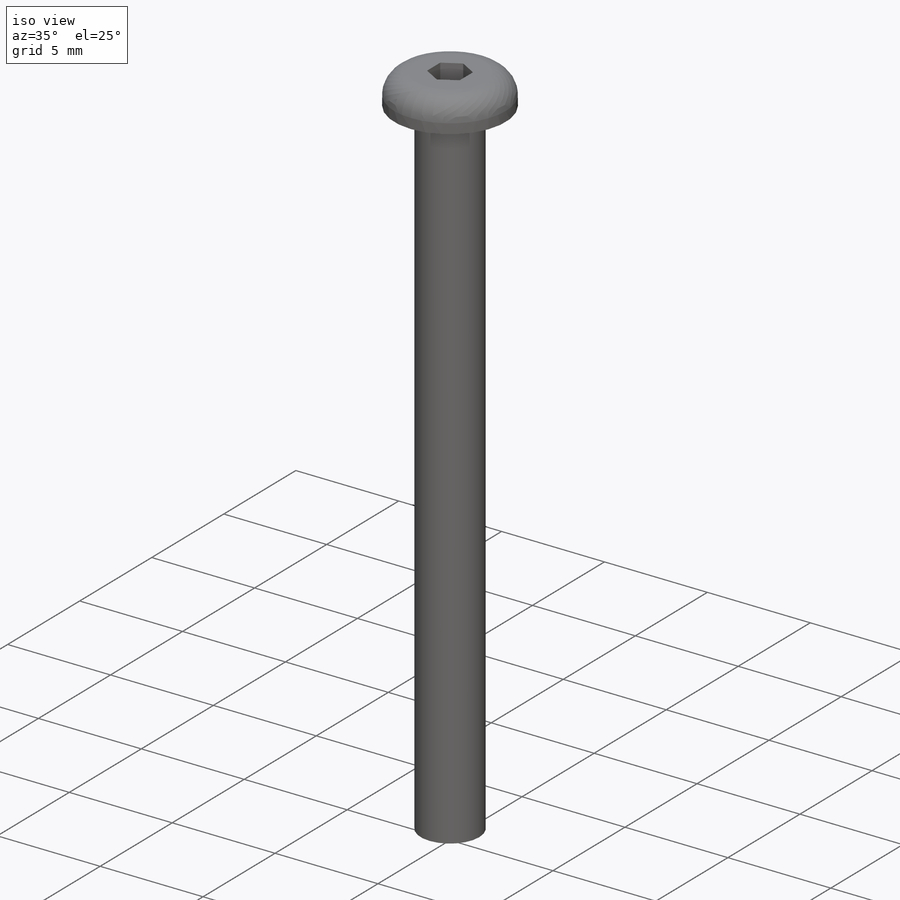
[diagram: iso view]
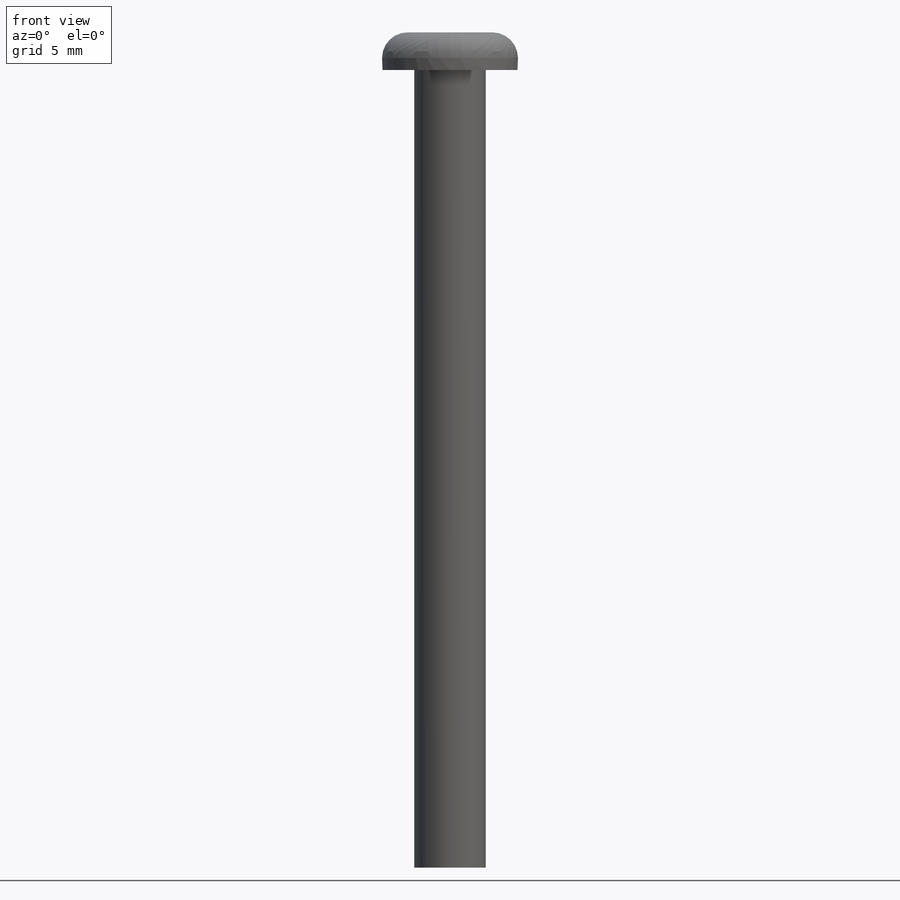
[diagram: front view]
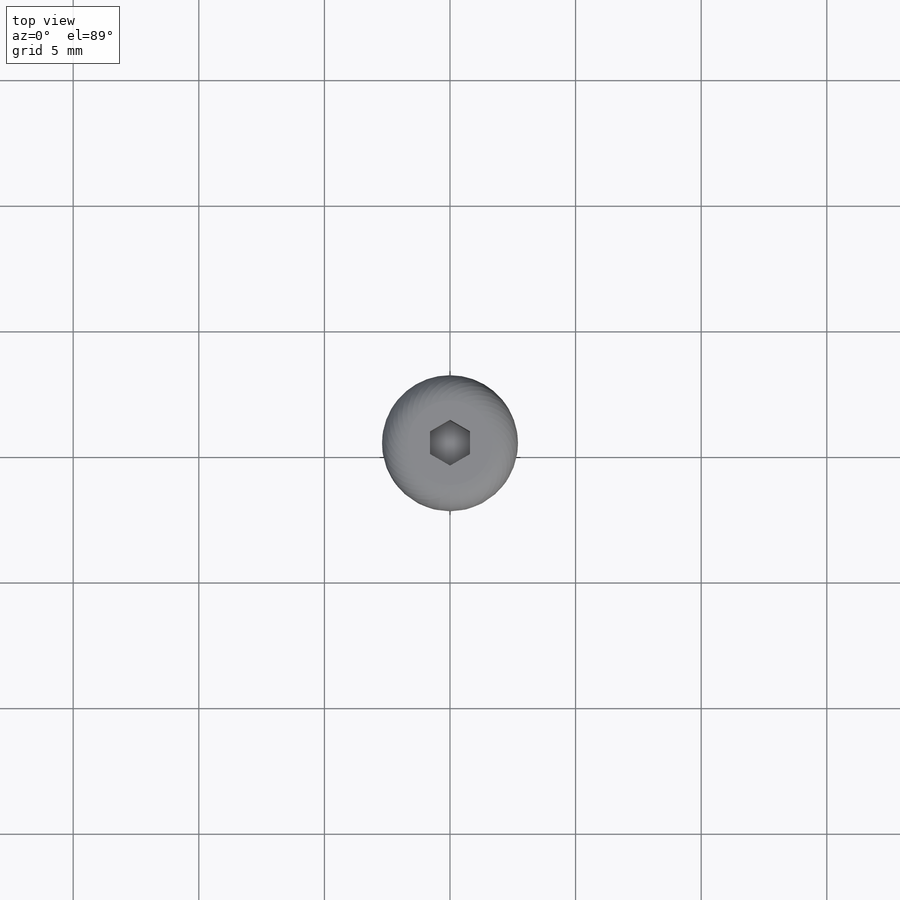
[diagram: top view]
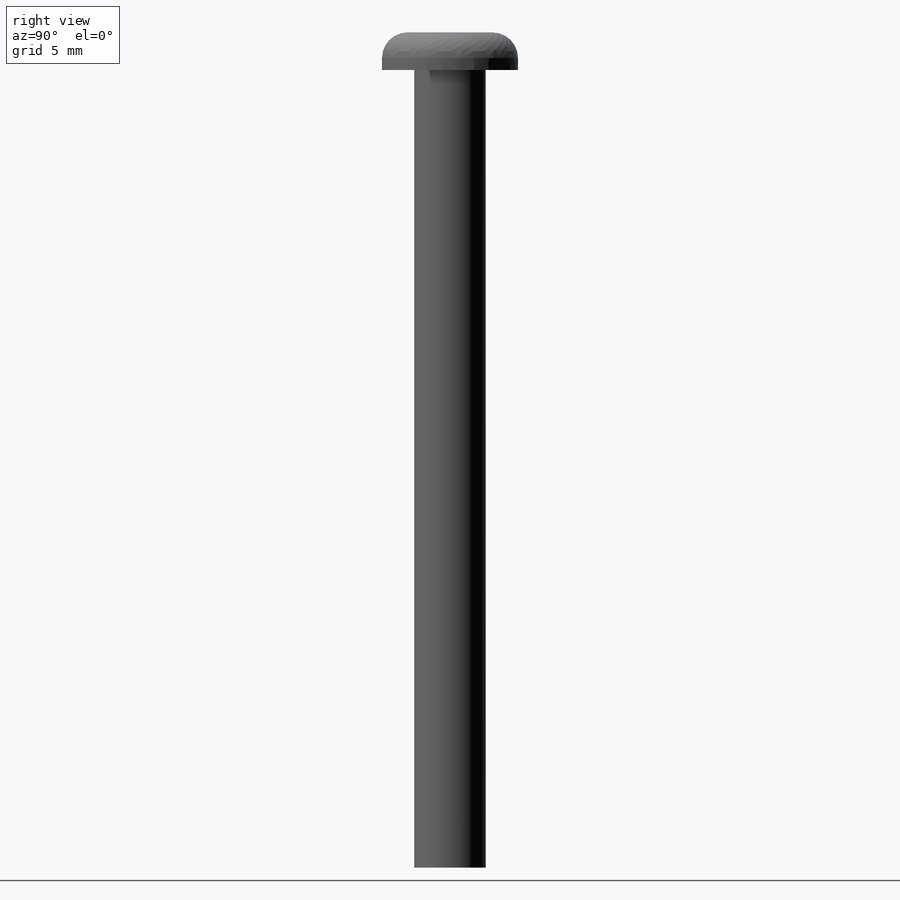
[diagram: right view]
SOLIDWORKS PART (.sldprt)
format: sldprt  version: not decoded by parser v0  size: 125,440 bytes
history: native  units: mm
features: sketch x3, extrude x2, material x1, fillet x1, cut_extrude x1 (+16 scaffold rows collapsed)
feature tree (24):
  scaffold x16  (default folders/planes/origin — collapsed)
  material  "Material <not specified>"
  sketch  "Sketch1"  dims[D1=2.8448mm]
  extrude  "Boss-Extrude1"  Depth=31.75mm
  sketch  "Sketch2"  dims[D1=5.4102mm]
  extrude  "Boss-Extrude2"  Depth=1.4986mm
  fillet  "Fillet1"  Radius=1.016mm
  sketch  "Sketch3"  dims[D1=1.5875mm]
  cut_extrude  "Cut-Extrude1"  Depth=2.38125mm
decode coverage: 7 of 7 modeling features carry decoded parameters
note: suppression state not decoded; provenance and decode notes live in map.json
